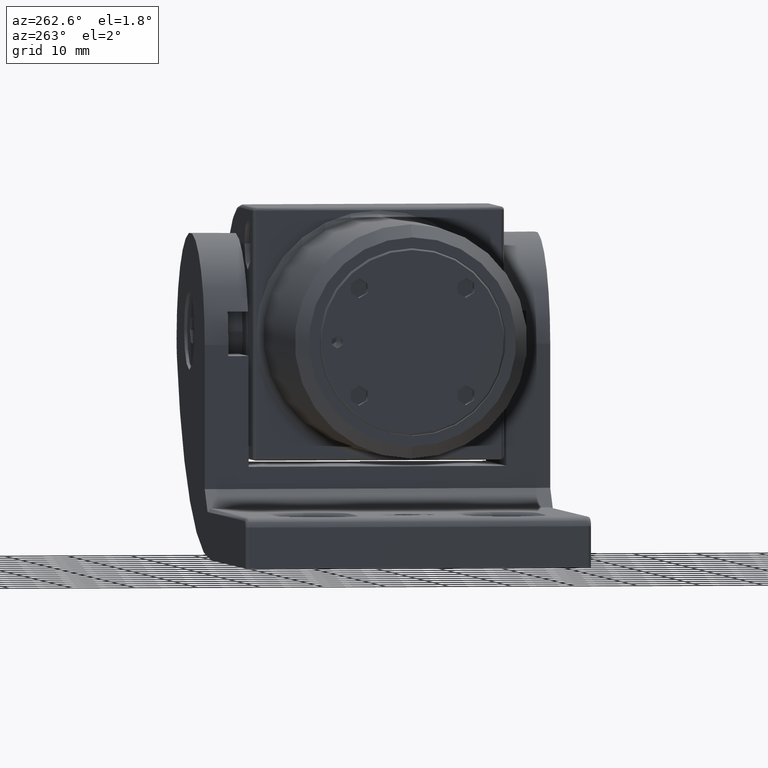
[diagram: clean part render]
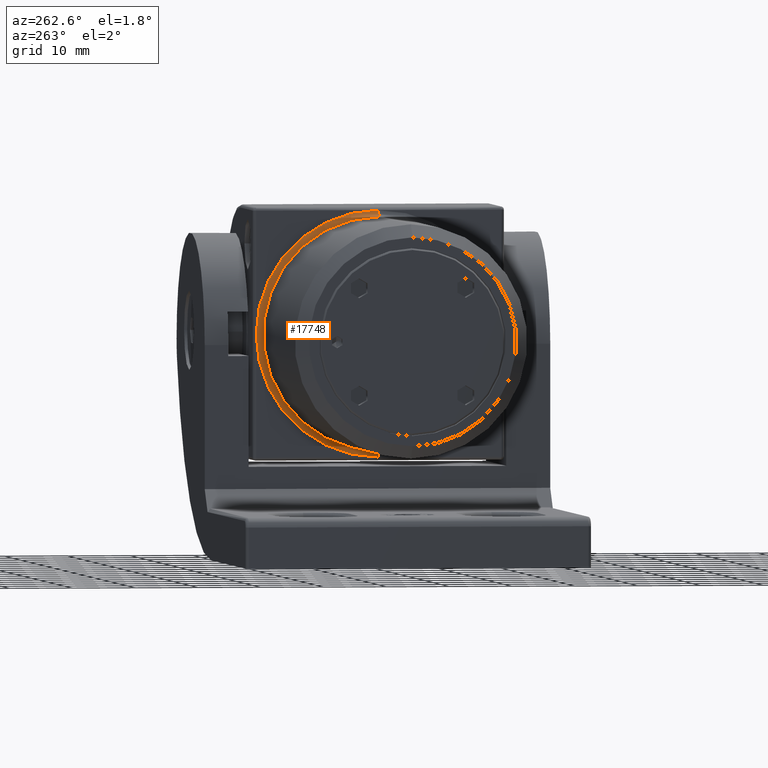
[diagram: same view with one face highlighted and labeled with its STEP entity id]
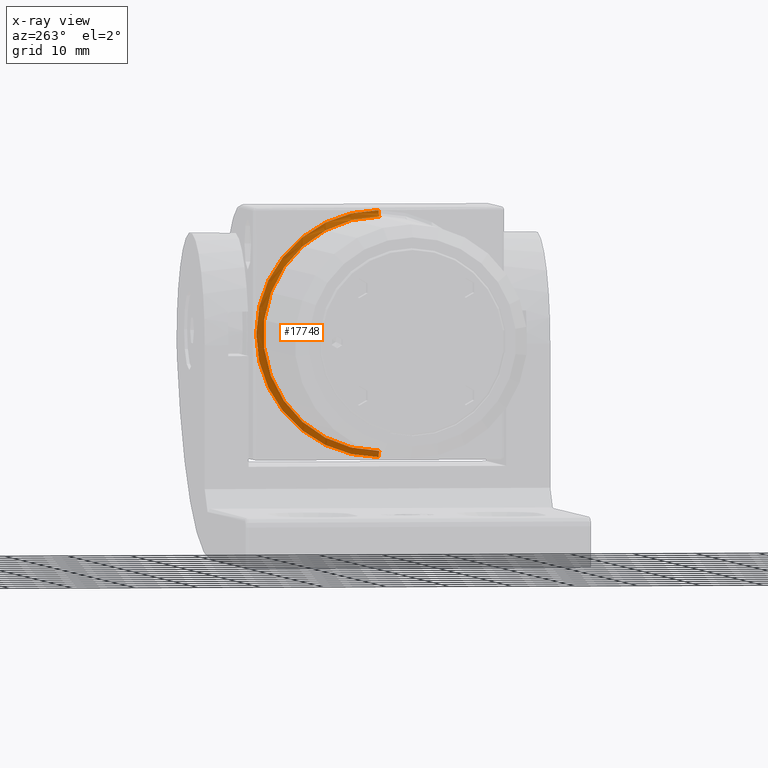
[diagram: x-ray of the same camera — body ghosted, the highlighted face saturated]
A machine part, auxiliary view. The second image highlights one B-rep face of the part: STEP entity #17748.
The next image is the same camera in x-ray: the body ghosted, the highlighted face saturated — about 2% of this face is hidden behind the body in this view.
In plain terms, the highlighted toroidal blend (fillet) surface has major radius 19.5 mm and minor (blend) radius 1 mm.
Its self-contained STEP definition (entity closure, byte-faithful):
#161 = AXIS2_PLACEMENT_3D ( 'NONE', #15209, #9285, #11262 ) ;
#681 = DIRECTION ( 'NONE',  ( -1.000000000000000000, 0.000000000000000000, 0.000000000000000000 ) ) ;
#1348 = CARTESIAN_POINT ( 'NONE',  ( 0.000000000000000000, 0.000000000000000000, 0.000000000000000000 ) ) ;
#1357 = CIRCLE ( 'NONE', #14028, 1.000000000000000000 ) ;
#2015 = DIRECTION ( 'NONE',  ( -1.000000000000000000, 0.000000000000000000, 0.000000000000000000 ) ) ;
#2041 = ORIENTED_EDGE ( 'NONE', *, *, #21387, .F. ) ;
#2460 = ORIENTED_EDGE ( 'NONE', *, *, #10370, .T. ) ;
#3512 = CARTESIAN_POINT ( 'NONE',  ( -2.428612866367529932E-14, 0.000000000000000000, 1.000000000000000888 ) ) ;
#3793 = DIRECTION ( 'NONE',  ( -0.000000000000000000, -1.000000000000000000, -0.000000000000000000 ) ) ;
#4216 = EDGE_CURVE ( 'NONE', #23543, #21197, #20687, .T. ) ;
#4357 = CARTESIAN_POINT ( 'NONE',  ( 18.49999999999997513, 2.265596578422601424E-15, 1.000000000000000888 ) ) ;
#5085 = EDGE_LOOP ( 'NONE', ( #18816, #2041, #12572, #2460, #10990 ) ) ;
#7509 = DIRECTION ( 'NONE',  ( 0.000000000000000000, 0.000000000000000000, -1.000000000000000000 ) ) ;
#8182 = AXIS2_PLACEMENT_3D ( 'NONE', #1348, #20939, #13285 ) ;
#9285 = DIRECTION ( 'NONE',  ( -1.224646799147353207E-16, 1.000000000000000000, 0.000000000000000000 ) ) ;
#9385 = VERTEX_POINT ( 'NONE', #19278 ) ;
#9534 = VERTEX_POINT ( 'NONE', #21767 ) ;
#10294 = CARTESIAN_POINT ( 'NONE',  ( -2.428612866367529932E-14, 0.000000000000000000, 1.000000000000000888 ) ) ;
#10370 = EDGE_CURVE ( 'NONE', #17176, #21197, #1357, .T. ) ;
#10457 = DIRECTION ( 'NONE',  ( -0.000000000000000000, -0.000000000000000000, 1.000000000000000000 ) ) ;
#10919 = FACE_OUTER_BOUND ( 'NONE', #5085, .T. ) ;
#10921 = AXIS2_PLACEMENT_3D ( 'NONE', #25299, #15599, #21187 ) ;
#10990 = ORIENTED_EDGE ( 'NONE', *, *, #4216, .F. ) ;
#11262 = DIRECTION ( 'NONE',  ( -1.000000000000000000, -1.224646799147353454E-16, 0.000000000000000000 ) ) ;
#12169 = CARTESIAN_POINT ( 'NONE',  ( -18.50000000000002487, 0.000000000000000000, 1.000000000000000888 ) ) ;
#12572 = ORIENTED_EDGE ( 'NONE', *, *, #25194, .F. ) ;
#13285 = DIRECTION ( 'NONE',  ( -1.000000000000000000, 0.000000000000000000, 0.000000000000000000 ) ) ;
#13397 = CARTESIAN_POINT ( 'NONE',  ( -19.50000000000002487, 0.000000000000000000, 1.000000000000000888 ) ) ;
#14028 = AXIS2_PLACEMENT_3D ( 'NONE', #13397, #3793, #7509 ) ;
#14912 = TOROIDAL_SURFACE ( 'NONE', #20090, 19.50000000000000000, 1.000000000000000000 ) ;
#15209 = CARTESIAN_POINT ( 'NONE',  ( 19.49999999999997513, 2.388061258337338939E-15, 1.000000000000000888 ) ) ;
#15284 = CIRCLE ( 'NONE', #10921, 19.50000000000000000 ) ;
#15514 = CIRCLE ( 'NONE', #8182, 19.50000000000000000 ) ;
#15599 = DIRECTION ( 'NONE',  ( 0.000000000000000000, 0.000000000000000000, -1.000000000000000000 ) ) ;
#17176 = VERTEX_POINT ( 'NONE', #17447 ) ;
#17447 = CARTESIAN_POINT ( 'NONE',  ( -19.50000000000000000, 0.000000000000000000, -1.214306433183764966E-14 ) ) ;
#17748 = ADVANCED_FACE ( 'NONE', ( #10919 ), #14912, .F. ) ;
#18816 = ORIENTED_EDGE ( 'NONE', *, *, #23322, .F. ) ;
#19278 = CARTESIAN_POINT ( 'NONE',  ( 19.49999999999999645, 0.000000000000000000, 0.000000000000000000 ) ) ;
#20090 = AXIS2_PLACEMENT_3D ( 'NONE', #3512, #21684, #2015 ) ;
#20687 = CIRCLE ( 'NONE', #20882, 18.50000000000000000 ) ;
#20882 = AXIS2_PLACEMENT_3D ( 'NONE', #10294, #10457, #681 ) ;
#20939 = DIRECTION ( 'NONE',  ( 0.000000000000000000, 0.000000000000000000, -1.000000000000000000 ) ) ;
#21187 = DIRECTION ( 'NONE',  ( -1.000000000000000000, 0.000000000000000000, 0.000000000000000000 ) ) ;
#21197 = VERTEX_POINT ( 'NONE', #12169 ) ;
#21387 = EDGE_CURVE ( 'NONE', #9534, #9385, #15284, .T. ) ;
#21684 = DIRECTION ( 'NONE',  ( 0.000000000000000000, 0.000000000000000000, -1.000000000000000000 ) ) ;
#21767 = CARTESIAN_POINT ( 'NONE',  ( 0.000000000000000000, 19.50000000000000355, 0.000000000000000000 ) ) ;
#22572 = CIRCLE ( 'NONE', #161, 1.000000000000000888 ) ;
#23322 = EDGE_CURVE ( 'NONE', #9385, #23543, #22572, .T. ) ;
#23543 = VERTEX_POINT ( 'NONE', #4357 ) ;
#25194 = EDGE_CURVE ( 'NONE', #17176, #9534, #15514, .T. ) ;
#25299 = CARTESIAN_POINT ( 'NONE',  ( 0.000000000000000000, 0.000000000000000000, 0.000000000000000000 ) ) ;